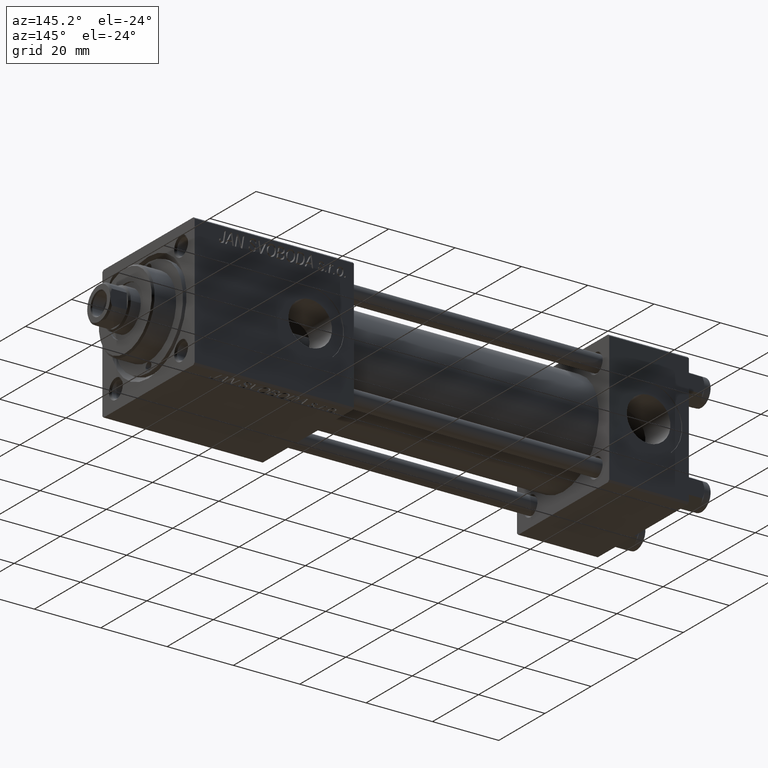
[diagram: clean part render]
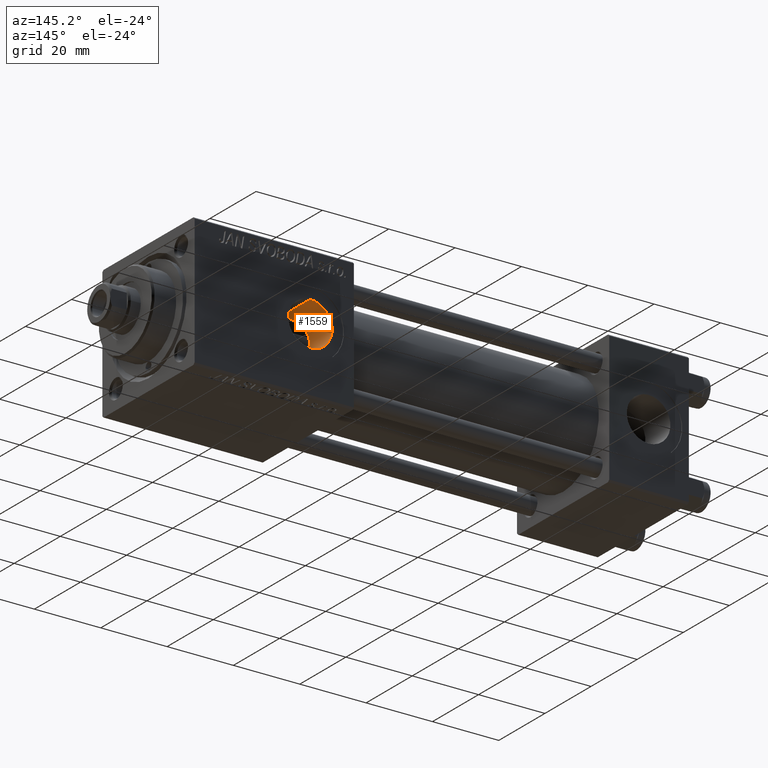
[diagram: same view with one face highlighted and labeled with its STEP entity id]
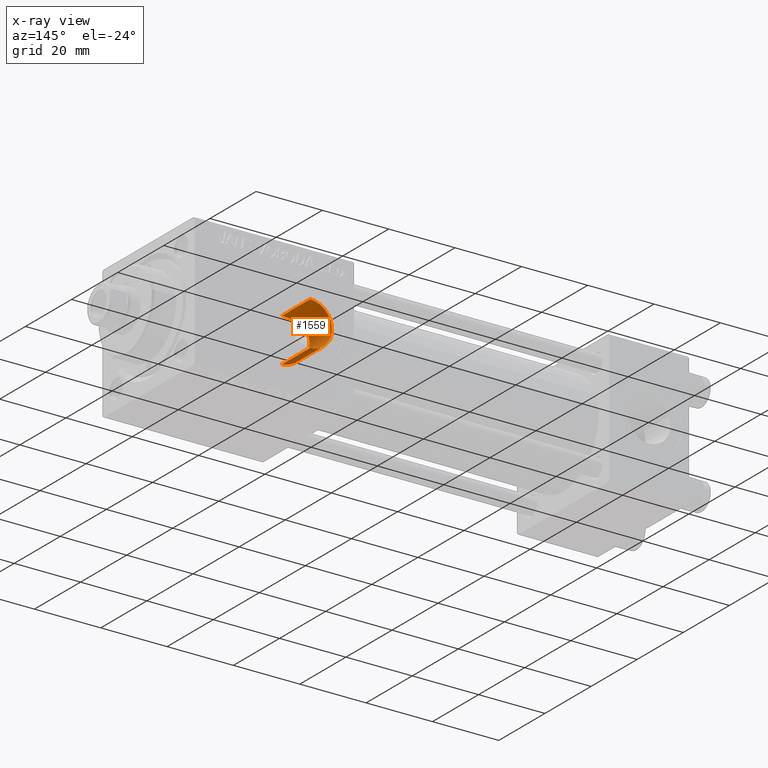
[diagram: x-ray of the same camera — body ghosted, the highlighted face saturated]
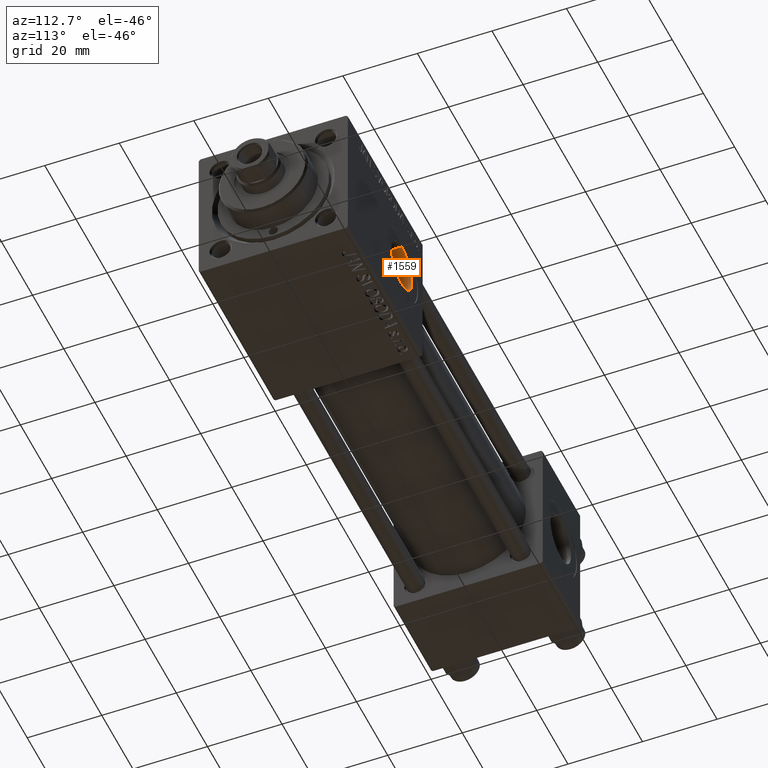
[diagram: same view with one face highlighted and labeled with its STEP entity id]
A machine part, auxiliary view. The second image highlights one B-rep face of the part: STEP entity #1559.
The next image is the same camera in x-ray: the body ghosted, the highlighted face saturated — about 0% of this face is hidden behind the body in this view.
A second angle (auxiliary view) of the same face is appended — the face is thin or edge-on in the first view.
In plain terms, the highlighted cylindrical surface (edge-blend (fillet) strip) has radius 6.58 mm, axis along (0, 1, 0).
Its self-contained STEP definition (entity closure, byte-faithful):
#449 = CYLINDRICAL_SURFACE ( 'NONE', #3406, 6.580000000000002736 ) ;
#1559 = ADVANCED_FACE ( 'NONE', ( #4253 ), #449, .F. ) ;
#2431 = CARTESIAN_POINT ( 'NONE',  ( 112.2449904846118187, 7.720408724897654729, 6.356778800091483106 ) ) ;
#3187 = CARTESIAN_POINT ( 'NONE',  ( 109.9774482969220770, 8.531476352750466674, -5.224223791845217235 ) ) ;
#3406 = AXIS2_PLACEMENT_3D ( 'NONE', #15944, #47463, #24307 ) ;
#3425 = CARTESIAN_POINT ( 'NONE',  ( 114.0000000000000000, 7.530179280734871305, -6.580000000000002736 ) ) ;
#4253 = FACE_OUTER_BOUND ( 'NONE', #35652, .T. ) ;
#5776 = ORIENTED_EDGE ( 'NONE', *, *, #42250, .F. ) ;
#6196 = DIRECTION ( 'NONE',  ( -0.000000000000000000, 1.000000000000000000, -0.000000000000000000 ) ) ;
#6468 = ORIENTED_EDGE ( 'NONE', *, *, #6622, .T. ) ;
#6622 = EDGE_CURVE ( 'NONE', #31085, #15144, #33636, .T. ) ;
#6999 = CARTESIAN_POINT ( 'NONE',  ( 107.4305281830287129, 9.993061695181124193, 0.4333401385722023824 ) ) ;
#8277 = ORIENTED_EDGE ( 'NONE', *, *, #15390, .F. ) ;
#8998 = LINE ( 'NONE', #28817, #17222 ) ;
#10042 = CARTESIAN_POINT ( 'NONE',  ( 108.7933196235711506, 9.152894906955811649, 4.045847017191778860 ) ) ;
#10303 = CARTESIAN_POINT ( 'NONE',  ( 111.6339782277808297, 7.890965100433708024, -6.143572682358476200 ) ) ;
#10554 = CARTESIAN_POINT ( 'NONE',  ( 113.1096544400095070, 7.570770745331775409, -6.534274136616109452 ) ) ;
#10582 = B_SPLINE_CURVE_WITH_KNOTS ( 'NONE', 3,
 ( #3425, #29615, #10554, #38238, #42058, #37993, #10303, #25804, #17932, #3187, #10802, #33427, #45882, #18927, #29871, #26048, #41561, #30114, #22246, #33936, #6999, #21739, #34425, #49962, #26547, #29359, #37248, #10042, #22495, #25557, #41313, #34181, #49468, #14620, #2431, #41060, #14864, #45636, #48960, #26298 ),
 .UNSPECIFIED., .F., .F.,
 ( 4, 2, 2, 2, 2, 2, 2, 2, 2, 2, 2, 2, 2, 2, 2, 2, 2, 2, 2, 4 ),
 ( 0.008701731815737244122, 0.01002764154747730167, 0.01069059641334733045, 0.01135355127921735749, 0.01267946101095741504, 0.01400537074269746912, 0.01533128047443752494, 0.01665719020617758075, 0.01798309993791763484, 0.01930900966965769239, 0.01997196453552772116, 0.02063491940139774994, 0.02196082913313781443, 0.02328673886487787892, 0.02461264859661794341, 0.02593855832835800790, 0.02726446806009807239, 0.02859037779183813688, 0.02925333265770816565, 0.02991628752357820137 ),
 .UNSPECIFIED. ) ;
#10802 = CARTESIAN_POINT ( 'NONE',  ( 109.6566975394874106, 8.689338620986715611, -4.960407246870166986 ) ) ;
#14620 = CARTESIAN_POINT ( 'NONE',  ( 111.8239908397005706, 7.829477968821654699, 6.224386180639466914 ) ) ;
#14663 = CARTESIAN_POINT ( 'NONE',  ( 114.0000000000000000, 7.530179280734286884, 6.580000000000002736 ) ) ;
#14864 = CARTESIAN_POINT ( 'NONE',  ( 113.1072651039580421, 7.579703922831289908, 6.522958760667120437 ) ) ;
#15144 = VERTEX_POINT ( 'NONE', #37275 ) ;
#15390 = EDGE_CURVE ( 'NONE', #43843, #49549, #8998, .T. ) ;
#15944 = CARTESIAN_POINT ( 'NONE',  ( 114.0000000000000000, -18.61105048082993463, 0.000000000000000000 ) ) ;
#16812 = DIRECTION ( 'NONE',  ( 0.000000000000000000, 0.000000000000000000, 1.000000000000000000 ) ) ;
#17222 = VECTOR ( 'NONE', #24255, 1000.000000000000000 ) ;
#17932 = CARTESIAN_POINT ( 'NONE',  ( 110.6756136868782932, 8.225369955964051627, -5.694022486111720127 ) ) ;
#18927 = CARTESIAN_POINT ( 'NONE',  ( 108.3206044567777866, 9.429864945222144357, -3.349355904675324958 ) ) ;
#19660 = VECTOR ( 'NONE', #6196, 1000.000000000000000 ) ;
#19868 = EDGE_CURVE ( 'NONE', #15144, #49549, #29563, .T. ) ;
#21118 = DIRECTION ( 'NONE',  ( 0.000000000000000000, 1.000000000000000000, 0.000000000000000000 ) ) ;
#21739 = CARTESIAN_POINT ( 'NONE',  ( 107.4747101613519646, 9.964071937118861300, 0.8754062778586857441 ) ) ;
#22246 = CARTESIAN_POINT ( 'NONE',  ( 107.4210988763100971, 9.999276940569057359, -0.4637401164956204136 ) ) ;
#22495 = CARTESIAN_POINT ( 'NONE',  ( 109.0610181898652939, 9.001882163286797578, 4.367698871530060423 ) ) ;
#22521 = ORIENTED_EDGE ( 'NONE', *, *, #19868, .T. ) ;
#24255 = DIRECTION ( 'NONE',  ( -0.000000000000000000, 1.000000000000000000, -0.000000000000000000 ) ) ;
#24307 = DIRECTION ( 'NONE',  ( 0.000000000000000000, 0.000000000000000000, 1.000000000000000000 ) ) ;
#25557 = CARTESIAN_POINT ( 'NONE',  ( 109.6519955275206826, 8.691690517589774956, 4.956328465760322821 ) ) ;
#25804 = CARTESIAN_POINT ( 'NONE',  ( 111.0468530364026520, 8.080059513839975338, -5.895413499623304965 ) ) ;
#26048 = CARTESIAN_POINT ( 'NONE',  ( 107.7789978426326911, 9.766632874168749368, -2.186530610313683898 ) ) ;
#26298 = CARTESIAN_POINT ( 'NONE',  ( 114.0000000000000000, 7.530179280734286884, 6.580000000000002736 ) ) ;
#26547 = CARTESIAN_POINT ( 'NONE',  ( 107.7719820653900484, 9.771107044109507811, 2.166893426414470802 ) ) ;
#28817 = CARTESIAN_POINT ( 'NONE',  ( 114.0000000000000000, -18.61105048082993463, 6.580000000000002736 ) ) ;
#29359 = CARTESIAN_POINT ( 'NONE',  ( 108.1093821645253996, 9.559587018131844971, 2.963824561550465919 ) ) ;
#29563 = CIRCLE ( 'NONE', #44173, 6.580000000000002736 ) ;
#29615 = CARTESIAN_POINT ( 'NONE',  ( 113.5496851877372251, 7.530179280734286884, -6.580000000000008953 ) ) ;
#29871 = CARTESIAN_POINT ( 'NONE',  ( 108.1169754501223395, 9.554905949892344097, -2.978557721002615288 ) ) ;
#30114 = CARTESIAN_POINT ( 'NONE',  ( 107.4673907059727895, 9.968652785925247173, -0.9020647327269541993 ) ) ;
#31085 = VERTEX_POINT ( 'NONE', #43423 ) ;
#33427 = CARTESIAN_POINT ( 'NONE',  ( 109.0658320792047533, 8.999241216751643790, -4.373088525023448803 ) ) ;
#33636 = LINE ( 'NONE', #48657, #19660 ) ;
#33936 = CARTESIAN_POINT ( 'NONE',  ( 107.4194792444137505, 10.00034265660074695, 0.2080752460831388762 ) ) ;
#34181 = CARTESIAN_POINT ( 'NONE',  ( 110.6718186190573192, 8.226989970428277843, 5.691590015520640478 ) ) ;
#34425 = CARTESIAN_POINT ( 'NONE',  ( 107.5078126017250639, 9.942383431864973531, 1.093810025436275923 ) ) ;
#35652 = EDGE_LOOP ( 'NONE', ( #5776, #6468, #22521, #8277 ) ) ;
#37248 = CARTESIAN_POINT ( 'NONE',  ( 108.3144821840393774, 9.433508227117542333, 3.339653543887882936 ) ) ;
#37254 = CARTESIAN_POINT ( 'NONE',  ( 114.0000000000000000, 19.79999999999999716, 6.580000000000002736 ) ) ;
#37275 = CARTESIAN_POINT ( 'NONE',  ( 114.0000000000000000, 19.79999999999999716, -6.580000000000002736 ) ) ;
#37993 = CARTESIAN_POINT ( 'NONE',  ( 111.8351553126284728, 7.832616369988987692, -6.217476725451139608 ) ) ;
#38238 = CARTESIAN_POINT ( 'NONE',  ( 112.4640001084591887, 7.682314708625095356, -6.401981549516359671 ) ) ;
#41060 = CARTESIAN_POINT ( 'NONE',  ( 112.8892785367373506, 7.608716402195930151, 6.489281286024413120 ) ) ;
#41313 = CARTESIAN_POINT ( 'NONE',  ( 109.9786100229817833, 8.531011078197984432, 5.224883813250304598 ) ) ;
#41561 = CARTESIAN_POINT ( 'NONE',  ( 107.6448694993188013, 9.853260265445777932, -1.760971689083142389 ) ) ;
#42058 = CARTESIAN_POINT ( 'NONE',  ( 112.2498591277456228, 7.728280517147018358, -6.346698061136354596 ) ) ;
#42250 = EDGE_CURVE ( 'NONE', #31085, #43843, #10582, .T. ) ;
#43423 = CARTESIAN_POINT ( 'NONE',  ( 114.0000000000000000, 7.530179280734871305, -6.580000000000002736 ) ) ;
#43843 = VERTEX_POINT ( 'NONE', #14663 ) ;
#44173 = AXIS2_PLACEMENT_3D ( 'NONE', #45024, #21118, #16812 ) ;
#45024 = CARTESIAN_POINT ( 'NONE',  ( 114.0000000000000000, 19.79999999999999716, 0.000000000000000000 ) ) ;
#45636 = CARTESIAN_POINT ( 'NONE',  ( 113.5502131468096394, 7.540374272970528757, 6.568383239022530518 ) ) ;
#45882 = CARTESIAN_POINT ( 'NONE',  ( 108.7938750211299492, 9.152625658485755267, -4.045983368347075171 ) ) ;
#47463 = DIRECTION ( 'NONE',  ( -0.000000000000000000, 1.000000000000000000, -0.000000000000000000 ) ) ;
#48657 = CARTESIAN_POINT ( 'NONE',  ( 114.0000000000000000, -18.61105048082993463, -6.580000000000002736 ) ) ;
#48960 = CARTESIAN_POINT ( 'NONE',  ( 113.7765844571856491, 7.530179280734284220, 6.580000000000000959 ) ) ;
#49468 = CARTESIAN_POINT ( 'NONE',  ( 111.0393083724720356, 8.082784440517436053, 5.891714884320903955 ) ) ;
#49549 = VERTEX_POINT ( 'NONE', #37254 ) ;
#49962 = CARTESIAN_POINT ( 'NONE',  ( 107.6393371493814612, 9.856835002517314592, 1.741389802721240443 ) ) ;